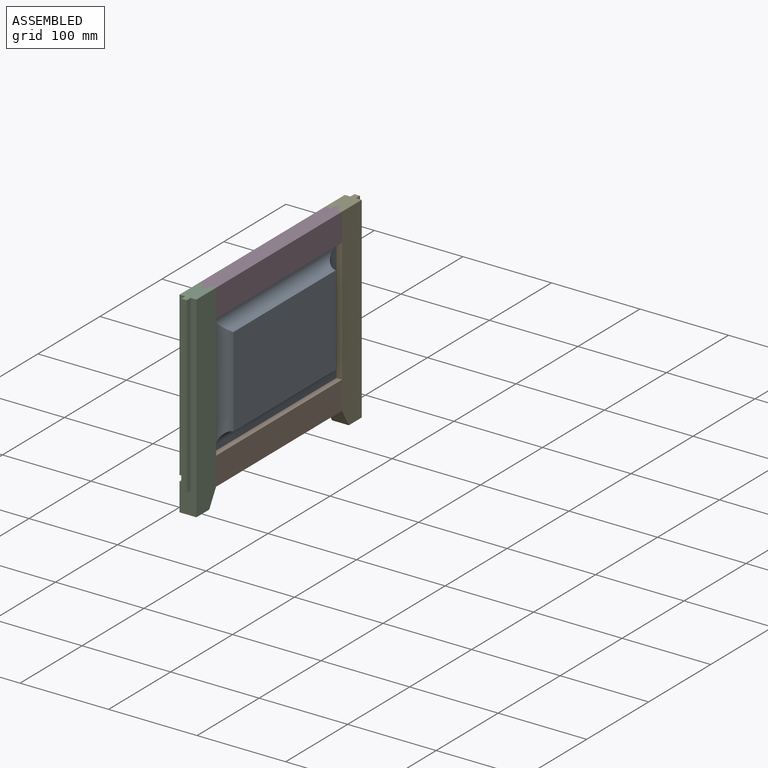
[diagram: assembled view]
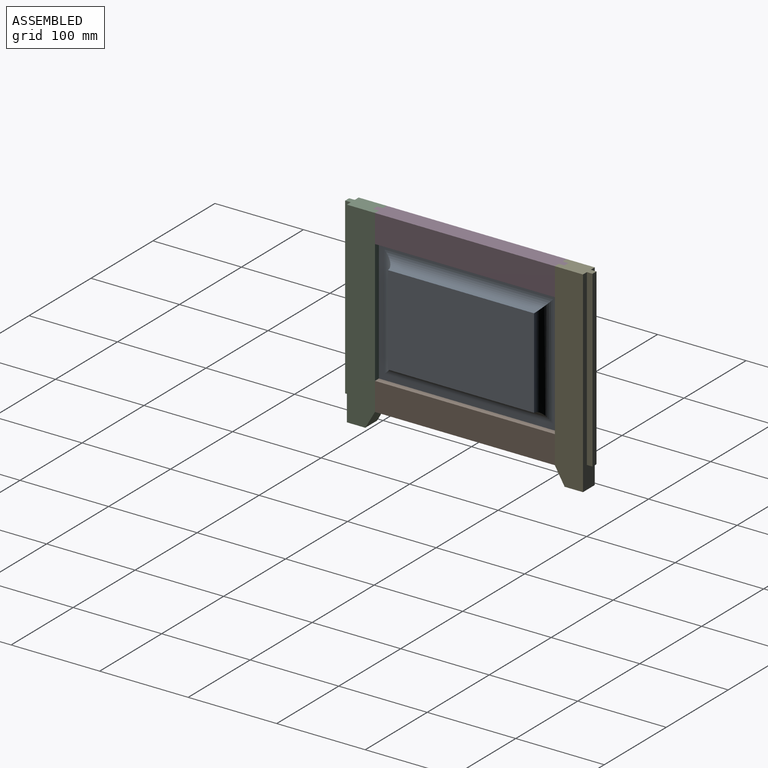
[diagram: assembled view, second angle]
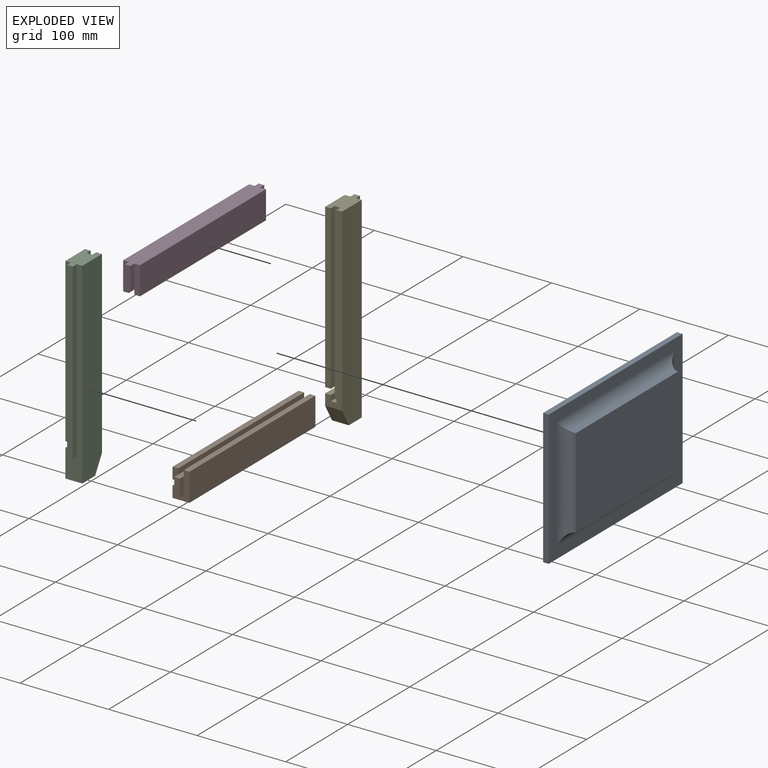
[diagram: exploded view]
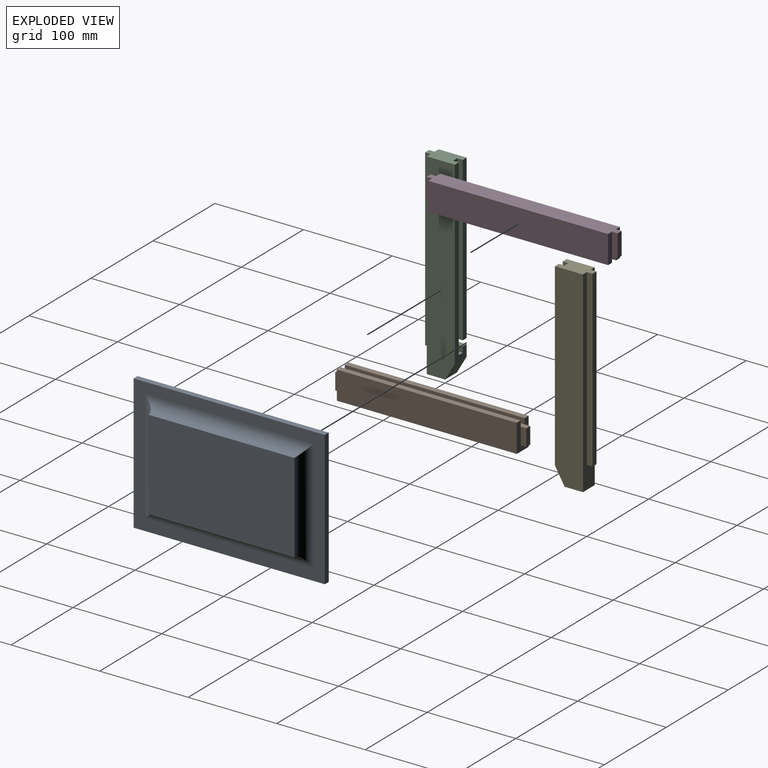
[diagram: exploded view, second angle]
ASSEMBLY  parts=5 mates=4
PART A: 11 faces, bbox 19.1x215.9x152.4 mm
  f0: plane 152.4x6.35mm, normal (0,-1,0), area 967.7mm2, adj f1,f3,f4,f5
  f1: plane 215.9x6.35mm, normal (0,0,-1), area 1371mm2, adj f0,f2,f4,f5
  f2: plane 152.4x6.35mm, normal (0,1,0), area 967.7mm2, adj f1,f3,f4,f5
  f3: plane 215.9x6.35mm, normal (0,0,1), area 1371mm2, adj f0,f2,f4,f5
  f4: plane 215.9x152.4mm, normal (1,0,0), area 8709.7mm2, adj f0,f1,f2,f3,f7,f8,f9,f10
  f5: plane 215.9x152.4mm, normal (-1,0,0), area 32903.2mm2, adj f0,f1,f2,f3
  f6: plane 165.1x101.6mm, normal (1,0,0), area 16774.2mm2, adj f7,f8,f9,f10
  f7: cylinder r=12.7mm len=127mm, axis (0,0,-1), area 2211mm2, adj f4,f6,f8,f9
  f8: cylinder r=12.7mm len=190.5mm, axis (0,1,0), area 3477.7mm2, adj f4,f6,f7,f10
  f9: cylinder r=12.7mm len=190.5mm, axis (0,-1,0), area 3477.7mm2, adj f4,f6,f7,f10
  f10: cylinder r=12.7mm len=127mm, axis (0,0,1), area 2211mm2, adj f4,f6,f8,f9
PART B: 22 faces, bbox 19.1x215.9x31.8 mm
  f0: plane 203.2x12.7mm, normal (-1,0,0), area 2580.6mm2, adj f3,f15,f16,f21
  f1: plane 12.7x6.35mm, normal (0,-1,0), area 80.6mm2, adj f6,f10,f11,f12,f20
  f2: plane 12.7x6.35mm, normal (0,1,0), area 80.6mm2, adj f6,f10,f11,f12,f20
  f3: plane 203.2x19.05mm, normal (0,0,1), area 3871mm2, adj f0,f9,f15,f16
  f4: plane 19.05x6.35mm, normal (1,0,0), area 121mm2, adj f5,f13,f15,f19
  f5: plane 19.05x6.35mm, normal (0,-1,0), area 121mm2, adj f4,f6,f13,f19
  f6: plane 215.9x19.05mm, normal (-1,0,0), area 1532.3mm2, adj f1,f2,f5,f13,f15,f16,f17,f18
  f7: plane 19.05x6.35mm, normal (1,0,0), area 121mm2, adj f13,f16,f17,f18
  f8: plane 203.2x6.35mm, normal (0,0,-1), area 1290.3mm2, adj f9,f14,f15,f16
  f9: plane 203.2x31.75mm, normal (1,0,0), area 6451.6mm2, adj f3,f8,f15,f16
  f10: plane 203.2x12.7mm, normal (-1,0,0), area 2580.6mm2, adj f1,f2,f11,f20
  f11: plane 203.2x6.35mm, normal (0,0,-1), area 1290.3mm2, adj f1,f2,f10,f12
  f12: plane 203.2x6.35mm, normal (1,0,0), area 1290.3mm2, adj f1,f2,f11,f13
  f13: plane 215.9x6.35mm, normal (0,0,-1), area 1371mm2, adj f4,f5,f6,f7,f12,f14,f17
  f14: plane 203.2x6.35mm, normal (-1,0,0), area 1290.3mm2, adj f8,f13,f15,f16
  f15: plane 31.75x19.05mm, normal (0,-1,0), area 322.6mm2, adj f0,f3,f4,f6,f8,f9,f14,f19
  f16: plane 31.75x19.05mm, normal (0,1,0), area 322.6mm2, adj f0,f3,f6,f7,f8,f9,f14,f18
  f17: plane 19.05x6.35mm, normal (0,1,0), area 121mm2, adj f6,f7,f13,f18
  f18: plane 6.35x6.35mm, normal (0,0,1), area 40.3mm2, adj f6,f7,f16,f17
  f19: plane 6.35x6.35mm, normal (0,0,1), area 40.3mm2, adj f4,f5,f6,f15
  f20: plane 203.2x6.35mm, normal (0,0,1), area 1290.3mm2, adj f1,f2,f6,f10
  f21: plane 203.2x6.35mm, normal (0,0,-1), area 1290.3mm2, adj f0,f6,f15,f16
PART C: 21 faces, bbox 19.1x38.1x222.3 mm
  f0: plane 203.2x19.05mm, normal (0,1,0), area 1411.3mm2, adj f1,f4,f7,f8,f14,f15,f18,f20
  f1: plane 38.1x19.05mm, normal (0,0,1), area 604.8mm2, adj f0,f2,f3,f4,f5,f6,f10,f12
  f2: plane 222.25x19.05mm, normal (0,-1,0), area 1774.2mm2, adj f1,f4,f8,f9,f10,f11,f12,f18
  f3: plane 184.15x6.35mm, normal (0,1,0), area 1169.4mm2, adj f1,f6,f16,f19
  f4: plane 222.25x31.75mm, normal (1,0,0), area 6951.7mm2, adj f0,f1,f2,f9,f20
  f5: plane 184.15x6.35mm, normal (0,-1,0), area 1169.4mm2, adj f1,f6,f10,f19
  f6: plane 184.15x31.75mm, normal (-1,0,0), area 5846.8mm2, adj f1,f3,f5,f19
  f7: plane 6.35x6.35mm, normal (1,0,0), area 40.3mm2, adj f0,f15,f17,f18
  f8: plane 31.75x31.75mm, normal (-1,0,0), area 903.3mm2, adj f0,f2,f9,f18,f20
  f9: plane 20.75x19.05mm, normal (0,0,-1), area 395.3mm2, adj f2,f4,f8,f20
  f10: plane 196.85x31.75mm, normal (-1,0,0), area 1411.3mm2, adj f1,f2,f5,f11,f13,f17,f18,f19
  f11: plane 6.35x6.35mm, normal (0,0,-1), area 40.3mm2, adj f2,f10,f12,f13
  f12: plane 196.85x6.35mm, normal (1,0,0), area 1250mm2, adj f1,f2,f11,f13
  f13: plane 196.85x6.35mm, normal (0,-1,0), area 1250mm2, adj f1,f10,f11,f12
  f14: plane 196.85x6.35mm, normal (-1,0,0), area 1250mm2, adj f0,f1,f15,f17
  f15: plane 6.35x6.35mm, normal (0,0,1), area 40.3mm2, adj f0,f7,f14,f17
  f16: plane 184.15x6.35mm, normal (1,0,0), area 1169.4mm2, adj f1,f3,f17,f19
  f17: plane 196.85x6.35mm, normal (0,1,0), area 1250mm2, adj f1,f7,f10,f14,f15,f16
  f18: plane 31.75x6.35mm, normal (0,0,1), area 201.6mm2, adj f0,f2,f7,f8,f10
  f19: plane 31.75x6.35mm, normal (0,0,-1), area 201.6mm2, adj f3,f5,f6,f10,f16
  f20: plane 19.05x19.05mm, normal (0,0.87,-0.5), area 419mm2, adj f0,f4,f8,f9
PART D: 18 faces, bbox 19.1x215.9x31.8 mm
  f0: plane 31.75x6.35mm, normal (0,-1,0), area 201.6mm2, adj f2,f4,f8,f9,f14
  f1: plane 31.75x6.35mm, normal (0,1,0), area 201.6mm2, adj f2,f7,f8,f9,f14
  f2: plane 215.9x19.05mm, normal (0,0,1), area 3951.6mm2, adj f0,f1,f3,f4,f5,f6,f7,f9
  f3: plane 25.4x6.35mm, normal (-1,0,0), area 161.3mm2, adj f2,f5,f13,f15
  f4: plane 25.4x6.35mm, normal (1,0,0), area 161.3mm2, adj f0,f2,f5,f13
  f5: plane 25.4x6.35mm, normal (0,-1,0), area 161.3mm2, adj f2,f3,f4,f13
  f6: plane 25.4x6.35mm, normal (-1,0,0), area 161.3mm2, adj f2,f13,f16,f17
  f7: plane 25.4x6.35mm, normal (1,0,0), area 161.3mm2, adj f1,f2,f13,f17
  f8: plane 203.2x6.35mm, normal (0,0,-1), area 1290.3mm2, adj f0,f1,f9,f14
  f9: plane 203.2x31.75mm, normal (1,0,0), area 6451.6mm2, adj f0,f1,f2,f8
  f10: plane 203.2x31.75mm, normal (-1,0,0), area 6451.6mm2, adj f2,f11,f15,f16
  f11: plane 203.2x6.35mm, normal (0,0,-1), area 1290.3mm2, adj f10,f12,f15,f16
  f12: plane 203.2x6.35mm, normal (1,0,0), area 1290.3mm2, adj f11,f13,f15,f16
  f13: plane 215.9x6.35mm, normal (0,0,-1), area 1371mm2, adj f3,f4,f5,f6,f7,f12,f14,f17
  f14: plane 203.2x6.35mm, normal (-1,0,0), area 1290.3mm2, adj f0,f1,f8,f13
  f15: plane 31.75x6.35mm, normal (0,-1,0), area 201.6mm2, adj f2,f3,f10,f11,f12
  f16: plane 31.75x6.35mm, normal (0,1,0), area 201.6mm2, adj f2,f6,f10,f11,f12
  f17: plane 25.4x6.35mm, normal (0,1,0), area 161.3mm2, adj f2,f6,f7,f13
PART E: 21 faces, bbox 19.1x38.1x222.3 mm
  f0: plane 184.15x6.35mm, normal (0,1,0), area 1169.4mm2, adj f1,f7,f9,f19
  f1: plane 38.1x19.05mm, normal (0,0,1), area 604.8mm2, adj f0,f2,f3,f6,f7,f8,f9,f10
  f2: plane 184.15x6.35mm, normal (0,-1,0), area 1169.4mm2, adj f1,f9,f12,f19
  f3: plane 222.25x31.75mm, normal (-1,0,0), area 6951.7mm2, adj f1,f4,f6,f8,f20
  f4: plane 20.75x19.05mm, normal (0,0,-1), area 395.3mm2, adj f3,f5,f6,f20
  f5: plane 31.75x31.75mm, normal (1,0,0), area 903.3mm2, adj f4,f6,f8,f18,f20
  f6: plane 222.25x19.05mm, normal (0,-1,0), area 1774.2mm2, adj f1,f3,f4,f5,f10,f11,f12,f18
  f7: plane 184.15x6.35mm, normal (-1,0,0), area 1169.4mm2, adj f0,f1,f17,f19
  f8: plane 203.2x19.05mm, normal (0,1,0), area 1411.3mm2, adj f1,f3,f5,f14,f15,f16,f18,f20
  f9: plane 184.15x31.75mm, normal (1,0,0), area 5846.8mm2, adj f0,f1,f2,f19
  f10: plane 196.85x6.35mm, normal (-1,0,0), area 1250mm2, adj f1,f6,f11,f13
  f11: plane 6.35x6.35mm, normal (0,0,-1), area 40.3mm2, adj f6,f10,f12,f13
  f12: plane 196.85x31.75mm, normal (1,0,0), area 1411.3mm2, adj f1,f2,f6,f11,f13,f17,f18,f19
  f13: plane 196.85x6.35mm, normal (0,-1,0), area 1250mm2, adj f1,f10,f11,f12
  f14: plane 6.35x6.35mm, normal (-1,0,0), area 40.3mm2, adj f8,f15,f17,f18
  f15: plane 6.35x6.35mm, normal (0,0,1), area 40.3mm2, adj f8,f14,f16,f17
  f16: plane 196.85x6.35mm, normal (1,0,0), area 1250mm2, adj f1,f8,f15,f17
  f17: plane 196.85x6.35mm, normal (0,1,0), area 1250mm2, adj f1,f7,f12,f14,f15,f16
  f18: plane 31.75x6.35mm, normal (0,0,1), area 201.6mm2, adj f5,f6,f8,f12,f14
  f19: plane 31.75x6.35mm, normal (0,0,-1), area 201.6mm2, adj f0,f2,f7,f9,f12
  f20: plane 19.05x19.05mm, normal (0,0.87,-0.5), area 419mm2, adj f3,f4,f5,f8
PLACE A t=(-80.7,151.55,97.5)mm
PLACE B rot(axis=(1,0,0),180deg) t=(-246.16,113.33,169.74)mm
PLACE C t=(-68,81.58,10.3)mm
PLACE D t=(-246.16,316.53,92.16)mm
PLACE E rot(axis=(0,0,1),180deg) t=(-87.05,348.28,10.3)mm
MATE fastened B.f9 <-> C.f4  axis (1,0,0) through (-68,113.33,29.35)mm
MATE fastened D.f2 <-> C.f1  axis (0,0,1) through (-68,113.33,232.55)mm
MATE fastened A.f4 <-> B.f14  axis (1,0,0) through (-74.35,214.93,54.75)mm
MATE fastened E.f3 <-> B.f9  axis (1,0,0) through (-68,316.53,29.35)mm
